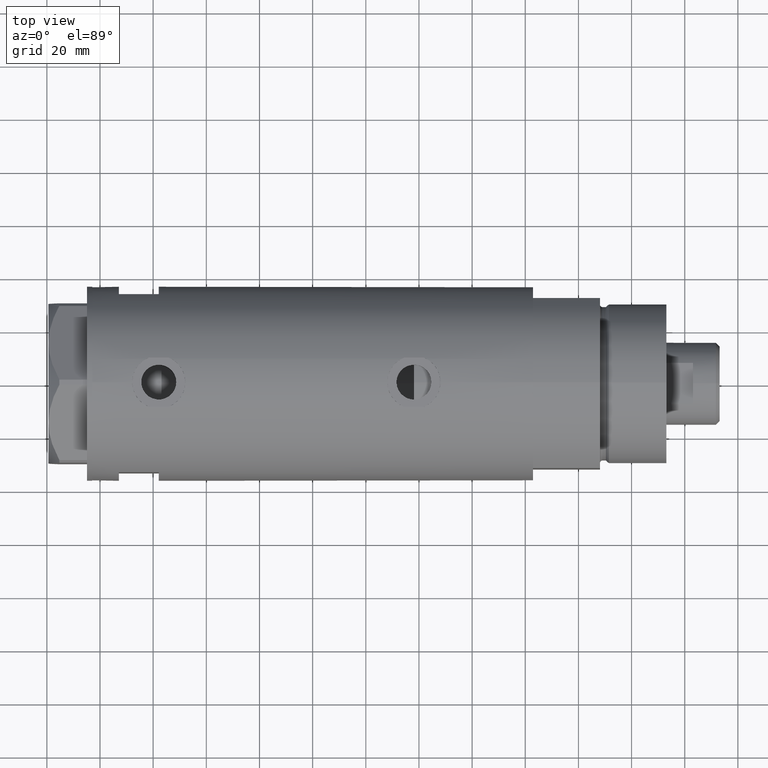
[diagram: clean part render]
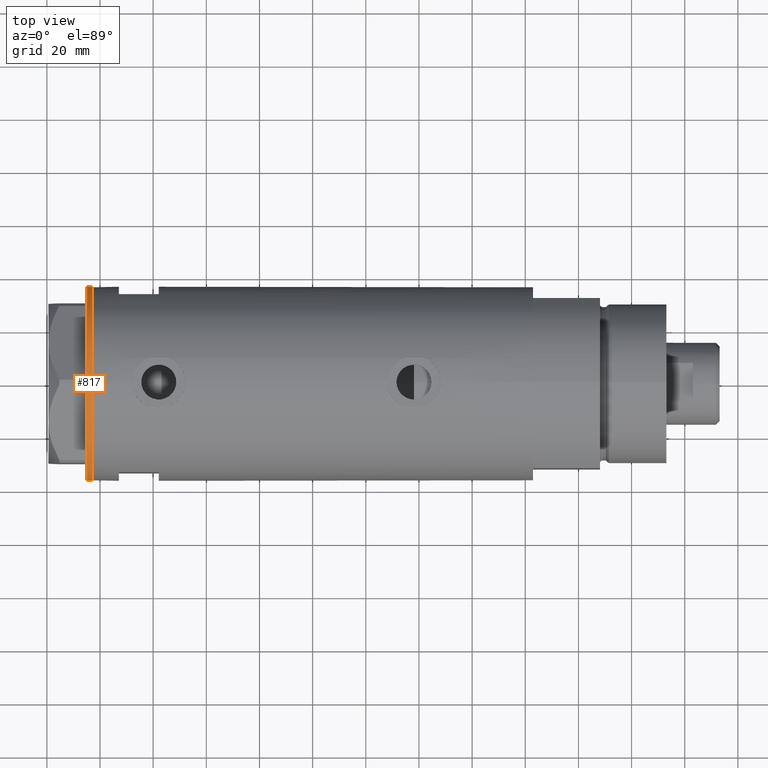
[diagram: same view with one face highlighted and labeled with its STEP entity id]
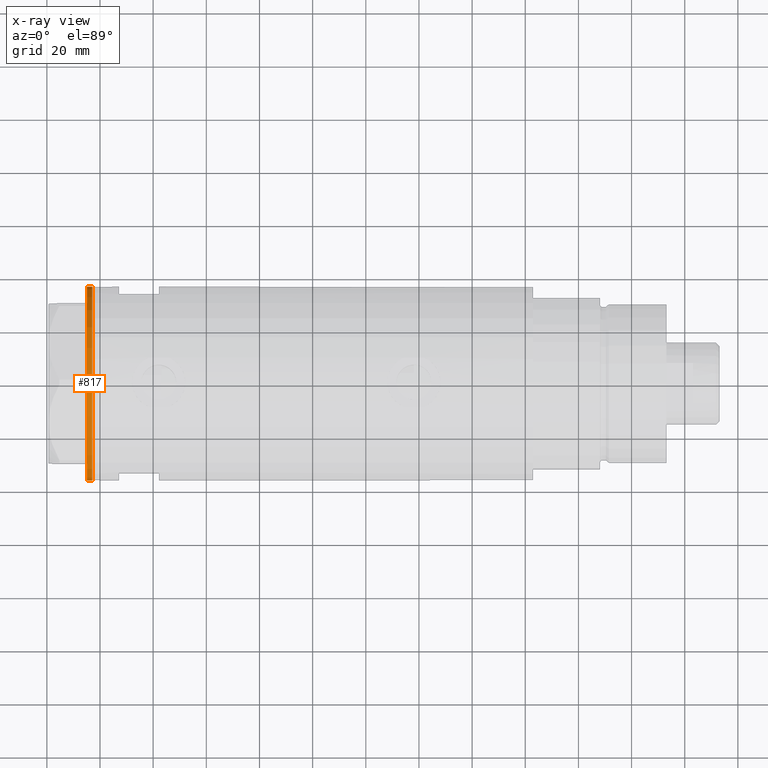
[diagram: x-ray of the same camera — body ghosted, the highlighted face saturated]
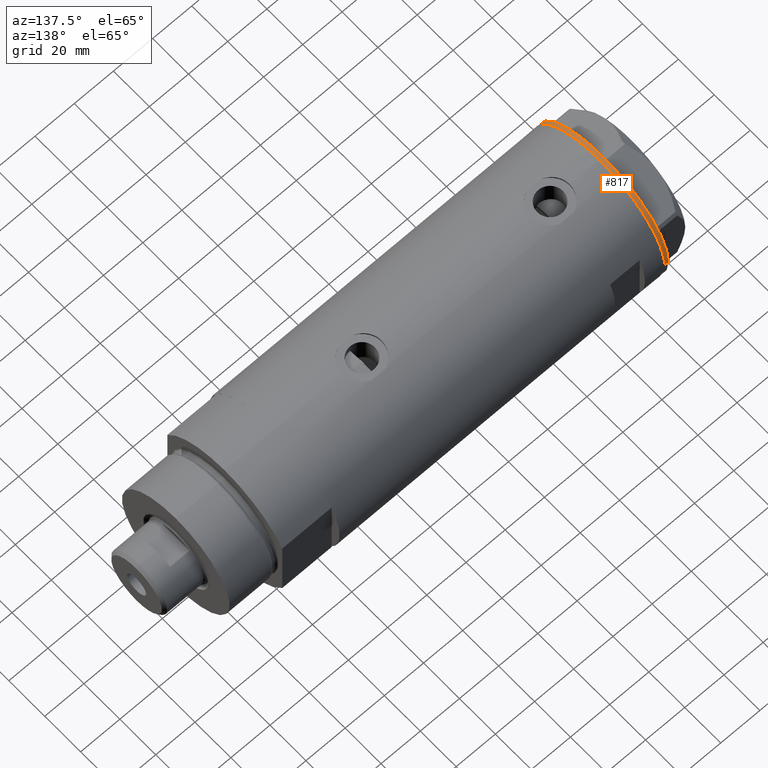
[diagram: same view with one face highlighted and labeled with its STEP entity id]
A machine part, top view. The second image highlights one B-rep face of the part: STEP entity #817.
The next image is the same camera in x-ray: the body ghosted, the highlighted face saturated — about 0% of this face is hidden behind the body in this view.
A second angle (auxiliary view) of the same face is appended — the face is thin or edge-on in the first view.
In plain terms, the highlighted cylindrical surface (partial cylindrical patch) has radius 36.5 mm, axis along (-1, -0, 0).
Its self-contained STEP definition (entity closure, byte-faithful):
#61 = AXIS2_PLACEMENT_3D ( 'NONE', #4359, #1285, #3724 ) ;
#175 = LINE ( 'NONE', #767, #2452 ) ;
#219 = AXIS2_PLACEMENT_3D ( 'NONE', #1117, #1485, #2830 ) ;
#222 = AXIS2_PLACEMENT_3D ( 'NONE', #4343, #3313, #2318 ) ;
#581 = VERTEX_POINT ( 'NONE', #3266 ) ;
#637 = CARTESIAN_POINT ( 'NONE',  ( 36.50000000000000000, 0.000000000000000000, -2.000000000000000000 ) ) ;
#767 = CARTESIAN_POINT ( 'NONE',  ( 36.50000000000000000, 0.000000000000000000, -2.000000000000000000 ) ) ;
#812 = EDGE_CURVE ( 'NONE', #1690, #581, #175, .T. ) ;
#817 = ADVANCED_FACE ( 'NONE', ( #1267 ), #1558, .T. ) ;
#1117 = CARTESIAN_POINT ( 'NONE',  ( 0.000000000000000000, 0.000000000000000000, 0.000000000000000000 ) ) ;
#1147 = VECTOR ( 'NONE', #1964, 1000.000000000000000 ) ;
#1188 = EDGE_LOOP ( 'NONE', ( #3091, #3130, #3957, #1353 ) ) ;
#1239 = LINE ( 'NONE', #2840, #1147 ) ;
#1267 = FACE_OUTER_BOUND ( 'NONE', #1188, .T. ) ;
#1285 = DIRECTION ( 'NONE',  ( -0.000000000000000000, -0.000000000000000000, 1.000000000000000000 ) ) ;
#1353 = ORIENTED_EDGE ( 'NONE', *, *, #2418, .T. ) ;
#1485 = DIRECTION ( 'NONE',  ( 0.000000000000000000, 0.000000000000000000, -1.000000000000000000 ) ) ;
#1558 = CYLINDRICAL_SURFACE ( 'NONE', #61, 36.50000000000000000 ) ;
#1690 = VERTEX_POINT ( 'NONE', #637 ) ;
#1915 = CARTESIAN_POINT ( 'NONE',  ( -36.50000000000000000, 4.469960816887838430E-15, -2.000000000000000000 ) ) ;
#1964 = DIRECTION ( 'NONE',  ( -0.000000000000000000, -0.000000000000000000, 1.000000000000000000 ) ) ;
#2158 = DIRECTION ( 'NONE',  ( -0.000000000000000000, -0.000000000000000000, 1.000000000000000000 ) ) ;
#2218 = EDGE_CURVE ( 'NONE', #3880, #3057, #1239, .T. ) ;
#2318 = DIRECTION ( 'NONE',  ( -1.000000000000000000, 0.000000000000000000, 0.000000000000000000 ) ) ;
#2371 = CIRCLE ( 'NONE', #219, 36.50000000000000000 ) ;
#2418 = EDGE_CURVE ( 'NONE', #581, #3057, #2371, .T. ) ;
#2452 = VECTOR ( 'NONE', #2158, 1000.000000000000000 ) ;
#2830 = DIRECTION ( 'NONE',  ( -1.000000000000000000, 0.000000000000000000, 0.000000000000000000 ) ) ;
#2840 = CARTESIAN_POINT ( 'NONE',  ( -36.50000000000000000, 4.469960816887838430E-15, -2.000000000000000000 ) ) ;
#3057 = VERTEX_POINT ( 'NONE', #4293 ) ;
#3091 = ORIENTED_EDGE ( 'NONE', *, *, #2218, .F. ) ;
#3130 = ORIENTED_EDGE ( 'NONE', *, *, #4364, .F. ) ;
#3259 = CIRCLE ( 'NONE', #222, 36.50000000000000000 ) ;
#3266 = CARTESIAN_POINT ( 'NONE',  ( 36.50000000000000000, 0.000000000000000000, 0.000000000000000000 ) ) ;
#3313 = DIRECTION ( 'NONE',  ( 0.000000000000000000, 0.000000000000000000, -1.000000000000000000 ) ) ;
#3724 = DIRECTION ( 'NONE',  ( 1.000000000000000000, 0.000000000000000000, 0.000000000000000000 ) ) ;
#3880 = VERTEX_POINT ( 'NONE', #1915 ) ;
#3957 = ORIENTED_EDGE ( 'NONE', *, *, #812, .T. ) ;
#4293 = CARTESIAN_POINT ( 'NONE',  ( -36.50000000000000000, 4.469960816887838430E-15, 0.000000000000000000 ) ) ;
#4343 = CARTESIAN_POINT ( 'NONE',  ( 0.000000000000000000, 0.000000000000000000, -2.000000000000000000 ) ) ;
#4359 = CARTESIAN_POINT ( 'NONE',  ( 0.000000000000000000, 0.000000000000000000, -2.000000000000000000 ) ) ;
#4364 = EDGE_CURVE ( 'NONE', #1690, #3880, #3259, .T. ) ;